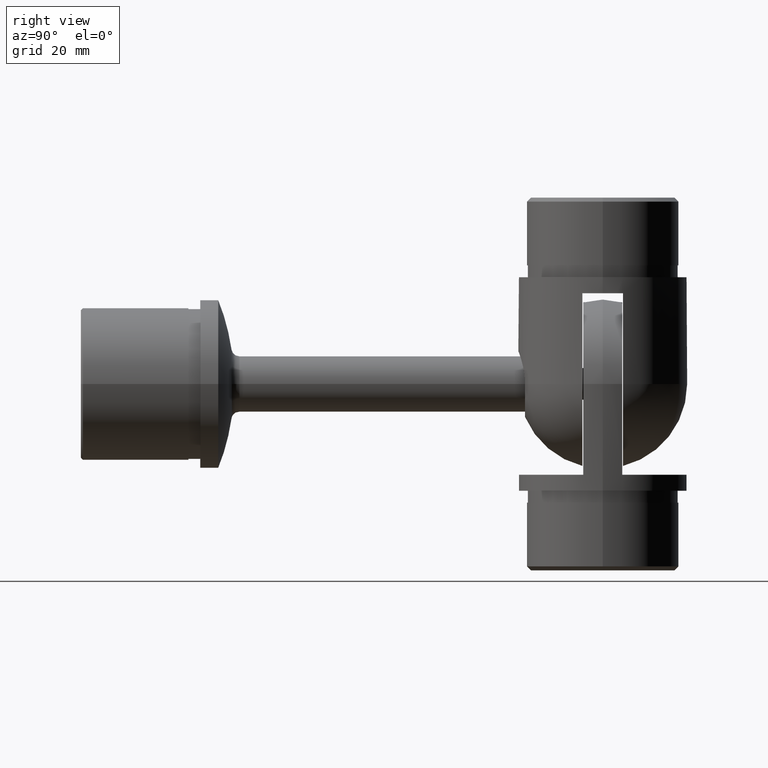
[diagram: clean part render]
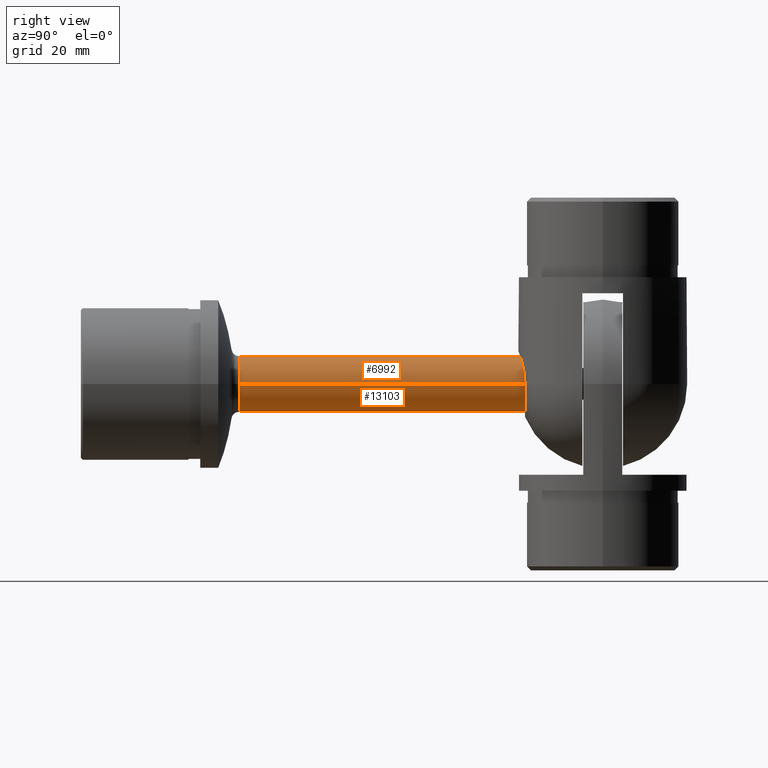
[diagram: same view with one multi-face feature highlighted, each face labeled with its STEP entity id]
A machine part, right view. The highlighted faces form ONE feature: a constant-radius fillet chain: 2 tangent blend faces with common blend radius 7 mm. The faces share edges in the B-rep.
Their STEP definitions:
[1] entity #13103 (Cylinder):
#224 = VERTEX_POINT ( 'NONE', #8905 ) ;
#274 = VECTOR ( 'NONE', #18433, 1000.000000000000000 ) ;
#405 = DIRECTION ( 'NONE',  ( -1.000000000000000000, 0.000000000000000000, 0.000000000000000000 ) ) ;
#545 = CARTESIAN_POINT ( 'NONE',  ( -6.835278436170655773E-16, 113.7999999999999972, 0.000000000000000000 ) ) ;
#1448 = DIRECTION ( 'NONE',  ( -8.356086107788088699E-18, 1.000000000000000000, -0.000000000000000000 ) ) ;
#1650 = VERTEX_POINT ( 'NONE', #9197 ) ;
#2226 = DIRECTION ( 'NONE',  ( -8.356086107788088699E-18, 1.000000000000000000, -0.000000000000000000 ) ) ;
#2799 = DIRECTION ( 'NONE',  ( -1.000000000000000000, 0.000000000000000000, 0.000000000000000000 ) ) ;
#4532 = CARTESIAN_POINT ( 'NONE',  ( -8.673617379884035472E-16, 135.8000000000000114, 0.000000000000000000 ) ) ;
#4684 = LINE ( 'NONE', #8406, #274 ) ;
#4693 = ORIENTED_EDGE ( 'NONE', *, *, #8382, .T. ) ;
#6260 = AXIS2_PLACEMENT_3D ( 'NONE', #4532, #7803, #2799 ) ;
#6363 = CARTESIAN_POINT ( 'NONE',  ( -6.534459336290271601E-17, 39.81999999999999318, 0.000000000000000000 ) ) ;
#6541 = FACE_OUTER_BOUND ( 'NONE', #20388, .T. ) ;
#7103 = CIRCLE ( 'NONE', #21042, 7.000000000000007994 ) ;
#7642 = ORIENTED_EDGE ( 'NONE', *, *, #9548, .F. ) ;
#7803 = DIRECTION ( 'NONE',  ( -8.356086107788088699E-18, 1.000000000000000000, -0.000000000000000000 ) ) ;
#7999 = EDGE_CURVE ( 'NONE', #224, #1650, #13864, .T. ) ;
#8382 = EDGE_CURVE ( 'NONE', #224, #11153, #16704, .T. ) ;
#8406 = CARTESIAN_POINT ( 'NONE',  ( -7.000000000000004441, 135.8000000000000114, 0.000000000000000000 ) ) ;
#8603 = CYLINDRICAL_SURFACE ( 'NONE', #6260, 7.000000000000003553 ) ;
#8905 = CARTESIAN_POINT ( 'NONE',  ( 6.999999999999999112, 39.81999999999999318, 9.614299268730537210E-16 ) ) ;
#9197 = CARTESIAN_POINT ( 'NONE',  ( 7.000000000000007105, 113.7999999999999972, 8.572527594031482064E-16 ) ) ;
#9420 = AXIS2_PLACEMENT_3D ( 'NONE', #6363, #21217, #21360 ) ;
#9548 = EDGE_CURVE ( 'NONE', #1650, #15553, #7103, .T. ) ;
#11153 = VERTEX_POINT ( 'NONE', #13548 ) ;
#13103 = ADVANCED_FACE ( 'NONE', ( #6541 ), #8603, .T. ) ;
#13548 = CARTESIAN_POINT ( 'NONE',  ( -6.999999999999999112, 39.81999999999999318, 0.000000000000000000 ) ) ;
#13592 = VECTOR ( 'NONE', #1448, 1000.000000000000000 ) ;
#13864 = LINE ( 'NONE', #17797, #13592 ) ;
#15553 = VERTEX_POINT ( 'NONE', #16419 ) ;
#15808 = ORIENTED_EDGE ( 'NONE', *, *, #17336, .T. ) ;
#16419 = CARTESIAN_POINT ( 'NONE',  ( -7.000000000000008882, 113.7999999999999972, 0.000000000000000000 ) ) ;
#16704 = CIRCLE ( 'NONE', #9420, 6.999999999999999112 ) ;
#17336 = EDGE_CURVE ( 'NONE', #11153, #15553, #4684, .T. ) ;
#17797 = CARTESIAN_POINT ( 'NONE',  ( 7.000000000000002665, 135.8000000000000114, 8.572527594031476148E-16 ) ) ;
#18433 = DIRECTION ( 'NONE',  ( -8.356086107788088699E-18, 1.000000000000000000, -0.000000000000000000 ) ) ;
#20388 = EDGE_LOOP ( 'NONE', ( #20842, #4693, #15808, #7642 ) ) ;
#20842 = ORIENTED_EDGE ( 'NONE', *, *, #7999, .F. ) ;
#21042 = AXIS2_PLACEMENT_3D ( 'NONE', #545, #2226, #405 ) ;
#21217 = DIRECTION ( 'NONE',  ( -8.356086107788088699E-18, 1.000000000000000000, -0.000000000000000000 ) ) ;
#21360 = DIRECTION ( 'NONE',  ( -1.000000000000000000, 0.000000000000000000, 0.000000000000000000 ) ) ;
[2] entity #6992 (Cylinder):
#224 = VERTEX_POINT ( 'NONE', #8905 ) ;
#274 = VECTOR ( 'NONE', #18433, 1000.000000000000000 ) ;
#1448 = DIRECTION ( 'NONE',  ( -8.356086107788088699E-18, 1.000000000000000000, -0.000000000000000000 ) ) ;
#1519 = DIRECTION ( 'NONE',  ( -1.000000000000000000, 0.000000000000000000, 0.000000000000000000 ) ) ;
#1650 = VERTEX_POINT ( 'NONE', #9197 ) ;
#3057 = AXIS2_PLACEMENT_3D ( 'NONE', #7205, #10583, #15556 ) ;
#3281 = FACE_OUTER_BOUND ( 'NONE', #5362, .T. ) ;
#4112 = CIRCLE ( 'NONE', #3057, 7.000000000000007994 ) ;
#4684 = LINE ( 'NONE', #8406, #274 ) ;
#4982 = ORIENTED_EDGE ( 'NONE', *, *, #17336, .F. ) ;
#5103 = EDGE_CURVE ( 'NONE', #11153, #224, #11359, .T. ) ;
#5315 = EDGE_CURVE ( 'NONE', #15553, #1650, #4112, .T. ) ;
#5362 = EDGE_LOOP ( 'NONE', ( #13584, #11730, #13867, #4982 ) ) ;
#6662 = CYLINDRICAL_SURFACE ( 'NONE', #10753, 7.000000000000003553 ) ;
#6674 = CARTESIAN_POINT ( 'NONE',  ( -6.534459336290271601E-17, 39.81999999999999318, 0.000000000000000000 ) ) ;
#6992 = ADVANCED_FACE ( 'NONE', ( #3281 ), #6662, .T. ) ;
#7205 = CARTESIAN_POINT ( 'NONE',  ( -6.835278436170655773E-16, 113.7999999999999972, 0.000000000000000000 ) ) ;
#7999 = EDGE_CURVE ( 'NONE', #224, #1650, #13864, .T. ) ;
#8270 = DIRECTION ( 'NONE',  ( -8.356086107788088699E-18, 1.000000000000000000, -0.000000000000000000 ) ) ;
#8406 = CARTESIAN_POINT ( 'NONE',  ( -7.000000000000004441, 135.8000000000000114, 0.000000000000000000 ) ) ;
#8905 = CARTESIAN_POINT ( 'NONE',  ( 6.999999999999999112, 39.81999999999999318, 9.614299268730537210E-16 ) ) ;
#9197 = CARTESIAN_POINT ( 'NONE',  ( 7.000000000000007105, 113.7999999999999972, 8.572527594031482064E-16 ) ) ;
#10583 = DIRECTION ( 'NONE',  ( -8.356086107788088699E-18, 1.000000000000000000, -0.000000000000000000 ) ) ;
#10753 = AXIS2_PLACEMENT_3D ( 'NONE', #11435, #8270, #1519 ) ;
#11153 = VERTEX_POINT ( 'NONE', #13548 ) ;
#11359 = CIRCLE ( 'NONE', #14838, 6.999999999999999112 ) ;
#11435 = CARTESIAN_POINT ( 'NONE',  ( -8.673617379884035472E-16, 135.8000000000000114, 0.000000000000000000 ) ) ;
#11730 = ORIENTED_EDGE ( 'NONE', *, *, #7999, .T. ) ;
#13548 = CARTESIAN_POINT ( 'NONE',  ( -6.999999999999999112, 39.81999999999999318, 0.000000000000000000 ) ) ;
#13584 = ORIENTED_EDGE ( 'NONE', *, *, #5103, .T. ) ;
#13592 = VECTOR ( 'NONE', #1448, 1000.000000000000000 ) ;
#13864 = LINE ( 'NONE', #17797, #13592 ) ;
#13867 = ORIENTED_EDGE ( 'NONE', *, *, #5315, .F. ) ;
#14838 = AXIS2_PLACEMENT_3D ( 'NONE', #6674, #19881, #17943 ) ;
#15553 = VERTEX_POINT ( 'NONE', #16419 ) ;
#15556 = DIRECTION ( 'NONE',  ( -1.000000000000000000, 0.000000000000000000, 0.000000000000000000 ) ) ;
#16419 = CARTESIAN_POINT ( 'NONE',  ( -7.000000000000008882, 113.7999999999999972, 0.000000000000000000 ) ) ;
#17336 = EDGE_CURVE ( 'NONE', #11153, #15553, #4684, .T. ) ;
#17797 = CARTESIAN_POINT ( 'NONE',  ( 7.000000000000002665, 135.8000000000000114, 8.572527594031476148E-16 ) ) ;
#17943 = DIRECTION ( 'NONE',  ( -1.000000000000000000, 0.000000000000000000, 0.000000000000000000 ) ) ;
#18433 = DIRECTION ( 'NONE',  ( -8.356086107788088699E-18, 1.000000000000000000, -0.000000000000000000 ) ) ;
#19881 = DIRECTION ( 'NONE',  ( -8.356086107788088699E-18, 1.000000000000000000, -0.000000000000000000 ) ) ;